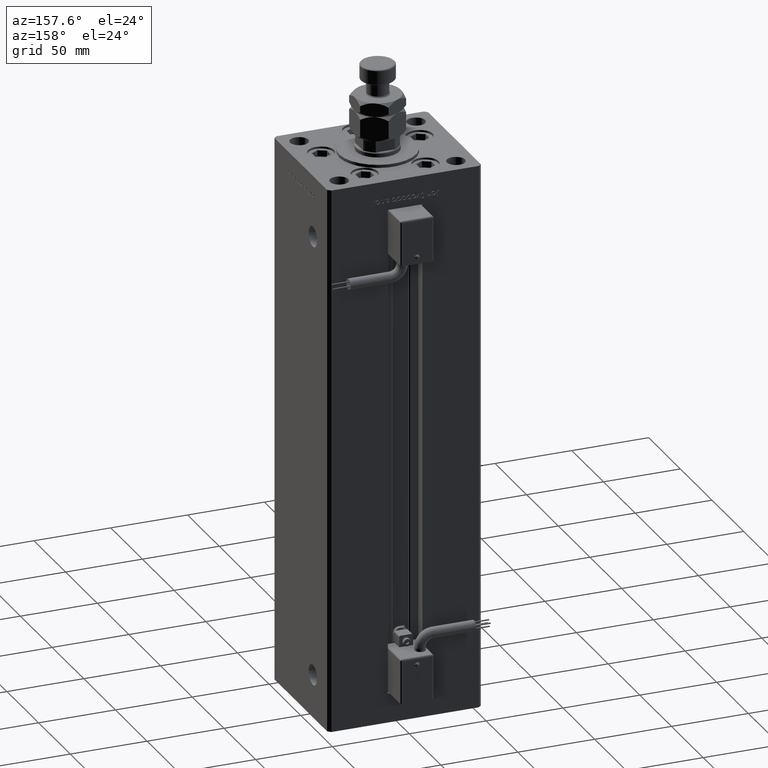
[diagram: clean part render]
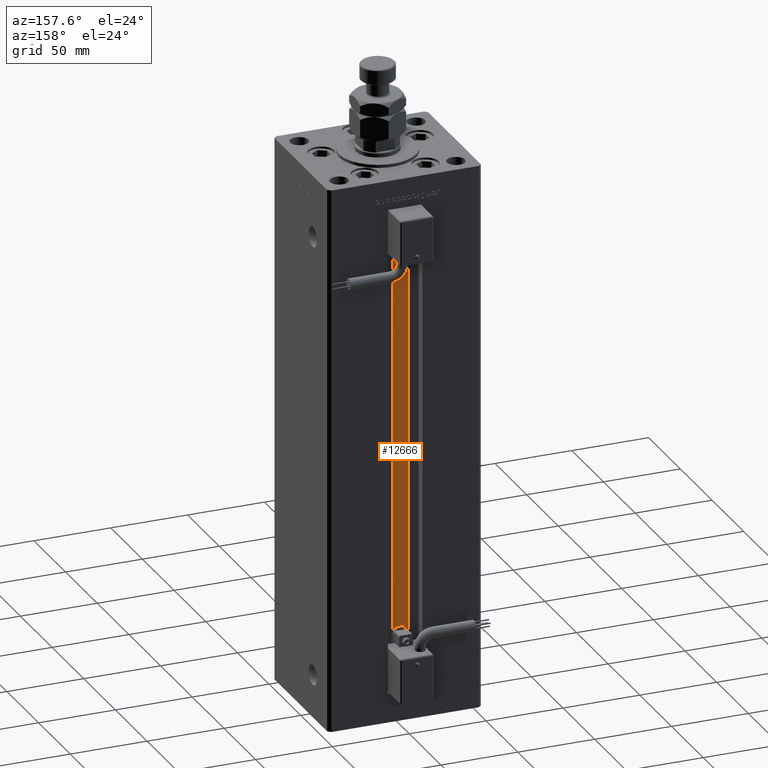
[diagram: same view with one face highlighted and labeled with its STEP entity id]
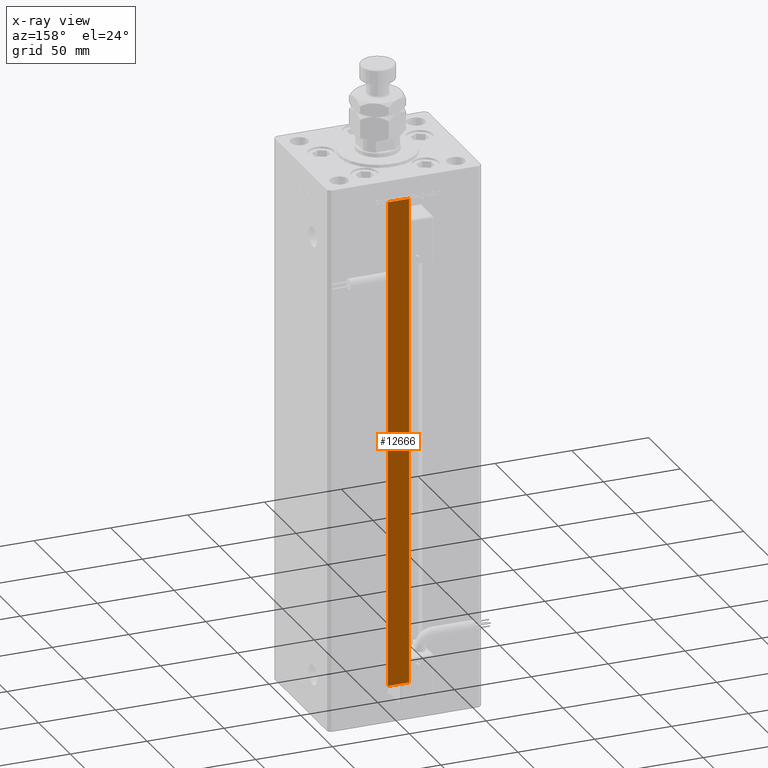
[diagram: x-ray of the same camera — body ghosted, the highlighted face saturated]
A machine part, auxiliary view. The second image highlights one B-rep face of the part: STEP entity #12666.
The next image is the same camera in x-ray: the body ghosted, the highlighted face saturated — about 0% of this face is hidden behind the body in this view.
In plain terms, the highlighted planar face has unit normal (0, -1, 0).
Its self-contained STEP definition (entity closure, byte-faithful):
#2596 = EDGE_CURVE ( 'NONE', #6862, #40639, #36566, .T. ) ;
#6862 = VERTEX_POINT ( 'NONE', #30435 ) ;
#6884 = EDGE_CURVE ( 'NONE', #12584, #6862, #17779, .T. ) ;
#10109 = CARTESIAN_POINT ( 'NONE',  ( 6.876153656360465050, 32.99999999999986500, 0.000000000000000000 ) ) ;
#12584 = VERTEX_POINT ( 'NONE', #56800 ) ;
#12666 = ADVANCED_FACE ( 'NONE', ( #32626 ), #36097, .F. ) ;
#14982 = DIRECTION ( 'NONE',  ( -0.000000000000000000, -0.000000000000000000, 1.000000000000000000 ) ) ;
#17006 = VECTOR ( 'NONE', #32374, 1000.000000000000000 ) ;
#17779 = LINE ( 'NONE', #34761, #30231 ) ;
#20691 = ORIENTED_EDGE ( 'NONE', *, *, #6884, .F. ) ;
#21002 = LINE ( 'NONE', #29917, #49044 ) ;
#22969 = AXIS2_PLACEMENT_3D ( 'NONE', #27189, #23141, #45294 ) ;
#23141 = DIRECTION ( 'NONE',  ( 0.000000000000000000, -1.000000000000000000, -0.000000000000000000 ) ) ;
#26044 = EDGE_CURVE ( 'NONE', #40639, #34407, #21002, .T. ) ;
#26474 = VECTOR ( 'NONE', #14982, 1000.000000000000000 ) ;
#27189 = CARTESIAN_POINT ( 'NONE',  ( 6.876153656360465050, 32.99999999999986500, 0.000000000000000000 ) ) ;
#28456 = EDGE_CURVE ( 'NONE', #12584, #34407, #53949, .T. ) ;
#29917 = CARTESIAN_POINT ( 'NONE',  ( 0.000000000000000000, 32.99999999999986500, 318.5000000000000000 ) ) ;
#30231 = VECTOR ( 'NONE', #33397, 1000.000000000000000 ) ;
#30435 = CARTESIAN_POINT ( 'NONE',  ( 6.876153656360465050, 32.99999999999986500, 0.000000000000000000 ) ) ;
#32090 = CARTESIAN_POINT ( 'NONE',  ( -6.876153656360465050, 32.99999999999986500, 0.000000000000000000 ) ) ;
#32374 = DIRECTION ( 'NONE',  ( -0.000000000000000000, -0.000000000000000000, 1.000000000000000000 ) ) ;
#32626 = FACE_OUTER_BOUND ( 'NONE', #52183, .T. ) ;
#33397 = DIRECTION ( 'NONE',  ( 1.000000000000000000, -0.000000000000000000, -0.000000000000000000 ) ) ;
#34407 = VERTEX_POINT ( 'NONE', #42711 ) ;
#34761 = CARTESIAN_POINT ( 'NONE',  ( 6.876153656360465050, 32.99999999999986500, 0.000000000000000000 ) ) ;
#36097 = PLANE ( 'NONE',  #22969 ) ;
#36566 = LINE ( 'NONE', #10109, #26474 ) ;
#40639 = VERTEX_POINT ( 'NONE', #47672 ) ;
#42711 = CARTESIAN_POINT ( 'NONE',  ( -6.876153656360465050, 32.99999999999986500, 318.5000000000000000 ) ) ;
#45294 = DIRECTION ( 'NONE',  ( 0.000000000000000000, 0.000000000000000000, -1.000000000000000000 ) ) ;
#47672 = CARTESIAN_POINT ( 'NONE',  ( 6.876153656360465050, 32.99999999999986500, 318.5000000000000000 ) ) ;
#49044 = VECTOR ( 'NONE', #52069, 1000.000000000000000 ) ;
#52044 = ORIENTED_EDGE ( 'NONE', *, *, #26044, .F. ) ;
#52069 = DIRECTION ( 'NONE',  ( -1.000000000000000000, 0.000000000000000000, 0.000000000000000000 ) ) ;
#52183 = EDGE_LOOP ( 'NONE', ( #55871, #20691, #56476, #52044 ) ) ;
#53949 = LINE ( 'NONE', #32090, #17006 ) ;
#55871 = ORIENTED_EDGE ( 'NONE', *, *, #2596, .F. ) ;
#56476 = ORIENTED_EDGE ( 'NONE', *, *, #28456, .T. ) ;
#56800 = CARTESIAN_POINT ( 'NONE',  ( -6.876153656360465050, 32.99999999999986500, 0.000000000000000000 ) ) ;